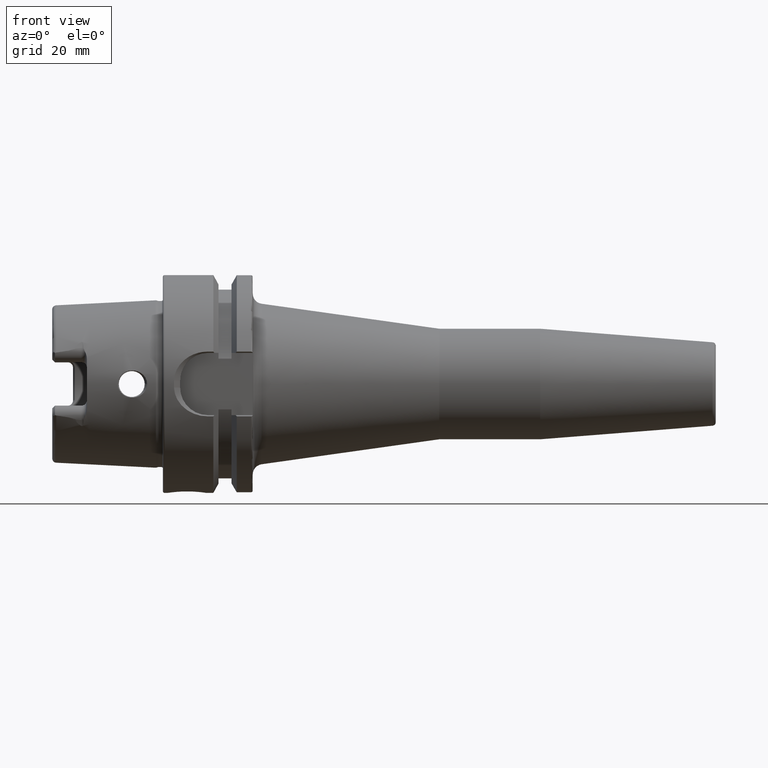
[diagram: clean part render]
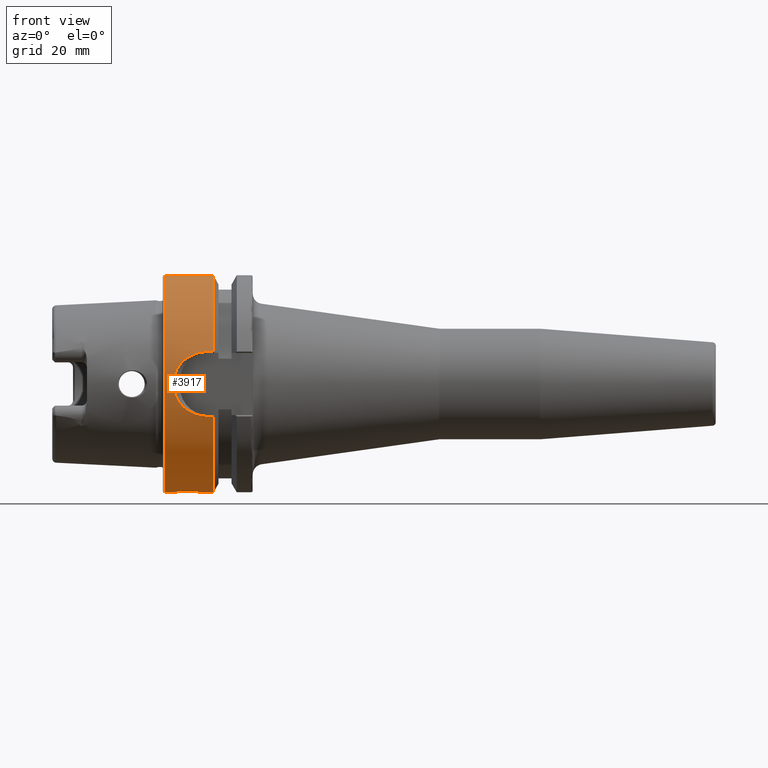
[diagram: same view with one face highlighted and labeled with its STEP entity id]
A machine part, front view. The second image highlights one B-rep face of the part: STEP entity #3917.
In plain terms, the highlighted cylindrical surface (partial cylindrical patch) has radius 31.5 mm, axis along (1, 0, 0).
Its self-contained STEP definition (entity closure, byte-faithful):
#742=CARTESIAN_POINT('',(5.E-1,0.E0,0.E0));
#743=DIRECTION('',(-1.E0,0.E0,0.E0));
#744=DIRECTION('',(0.E0,0.E0,-1.E0));
#745=AXIS2_PLACEMENT_3D('',#742,#743,#744);
#747=DIRECTION('',(-1.E0,-1.152697855394E-12,0.E0));
#748=VECTOR('',#747,1.412250090457E1);
#749=CARTESIAN_POINT('',(1.462250090457E1,0.E0,3.15E1));
#750=LINE('',#749,#748);
#751=CARTESIAN_POINT('',(1.462250090457E1,0.E0,0.E0));
#752=DIRECTION('',(1.E0,0.E0,0.E0));
#753=DIRECTION('',(0.E0,0.E0,1.E0));
#754=AXIS2_PLACEMENT_3D('',#751,#752,#753);
#756=DIRECTION('',(1.E0,0.E0,0.E0));
#757=VECTOR('',#756,1.622500904567E0);
#758=CARTESIAN_POINT('',(1.3E1,-3.007314630073E1,9.373146300730E0));
#759=LINE('',#758,#757);
#760=CARTESIAN_POINT('',(3.215877017138E0,-3.148412298286E1,1.E0));
#761=CARTESIAN_POINT('',(3.229667999164E0,-3.147033200084E1,1.434196974159E0));
#762=CARTESIAN_POINT('',(3.331305148110E0,-3.142562614716E1,2.280557906877E0));
#763=CARTESIAN_POINT('',(3.689639209254E0,-3.131261894329E1,3.497824814117E0));
#764=CARTESIAN_POINT('',(4.224387561762E0,-3.116591969202E1,4.617731549332E0));
#765=CARTESIAN_POINT('',(4.908842568303E0,-3.099748287679E1,5.632070943113E0));
#766=CARTESIAN_POINT('',(5.712482050064E0,-3.082045350516E1,6.526140660742E0));
#767=CARTESIAN_POINT('',(6.610248790574E0,-3.064607991101E1,7.296749719208E0));
#768=CARTESIAN_POINT('',(7.571522800308E0,-3.048524436851E1,7.938452155490E0));
#769=CARTESIAN_POINT('',(8.586678709411E0,-3.034375148093E1,8.460694722024E0));
#770=CARTESIAN_POINT('',(9.645764018389E0,-3.022707288446E1,8.866638984176E0));
#771=CARTESIAN_POINT('',(1.074128466146E1,-3.013966717822E1,9.158034230836E0));
#772=CARTESIAN_POINT('',(1.186302386205E1,-3.008546433696E1,9.333758812896E0));
#773=CARTESIAN_POINT('',(1.261911814478E1,-3.007314630073E1,9.373146300730E0));
#774=CARTESIAN_POINT('',(1.3E1,-3.007314630073E1,9.373146300730E0));
#776=CARTESIAN_POINT('',(3.215877017138E0,-3.148412298286E1,1.E0));
#777=CARTESIAN_POINT('',(3.194702323244E0,-3.150529767676E1,3.333333333333E-1));
#778=CARTESIAN_POINT('',(3.194702323244E0,-3.150529767676E1,
-3.333333333333E-1));
#779=CARTESIAN_POINT('',(3.215877017138E0,-3.148412298286E1,-1.E0));
#781=CARTESIAN_POINT('',(1.3E1,-3.007314630073E1,-9.373146300730E0));
#782=CARTESIAN_POINT('',(1.261853332120E1,-3.007314630073E1,-9.373146300730E0));
#783=CARTESIAN_POINT('',(1.186054965003E1,-3.008548964654E1,-9.333679878844E0));
#784=CARTESIAN_POINT('',(1.073214946153E1,-3.014018055062E1,-9.156365746563E0));
#785=CARTESIAN_POINT('',(9.631145388051E0,-3.022842683235E1,-8.862067281056E0));
#786=CARTESIAN_POINT('',(8.571278418516E0,-3.034570143073E1,-8.453719776647E0));
#787=CARTESIAN_POINT('',(7.561968874510E0,-3.048678333923E1,-7.932465852427E0));
#788=CARTESIAN_POINT('',(6.609353099417E0,-3.064632014939E1,-7.295523702098E0));
#789=CARTESIAN_POINT('',(5.719379577085E0,-3.081907849533E1,-6.532291860359E0));
#790=CARTESIAN_POINT('',(4.918592559215E0,-3.099521802093E1,-5.644324145033E0));
#791=CARTESIAN_POINT('',(4.231158808814E0,-3.116413549913E1,-4.629983120332E0));
#792=CARTESIAN_POINT('',(3.691949597490E0,-3.131190693228E1,-3.504990575318E0));
#793=CARTESIAN_POINT('',(3.331145804748E0,-3.142565099898E1,-2.281032014602E0));
#794=CARTESIAN_POINT('',(3.229661047521E0,-3.147033895248E1,-1.433978107804E0));
#795=CARTESIAN_POINT('',(3.215877017138E0,-3.148412298286E1,-1.E0));
#797=DIRECTION('',(1.E0,0.E0,0.E0));
#798=VECTOR('',#797,1.622500904567E0);
#799=CARTESIAN_POINT('',(1.3E1,-3.007314630073E1,-9.373146300730E0));
#800=LINE('',#799,#798);
#801=CARTESIAN_POINT('',(1.462250090457E1,0.E0,0.E0));
#802=DIRECTION('',(1.E0,0.E0,0.E0));
#803=DIRECTION('',(0.E0,-9.547030571660E-1,-2.975602000232E-1));
#804=AXIS2_PLACEMENT_3D('',#801,#802,#803);
#806=DIRECTION('',(-1.E0,0.E0,0.E0));
#807=VECTOR('',#806,2.122500904567E0);
#808=CARTESIAN_POINT('',(1.462250090457E1,0.E0,-3.15E1));
#809=LINE('',#808,#807);
#810=CARTESIAN_POINT('',(1.5E0,0.E0,-3.15E1));
#811=CARTESIAN_POINT('',(1.5E0,-3.588951255127E-1,-3.15E1));
#812=CARTESIAN_POINT('',(1.581138327990E0,-1.048548521747E0,-3.148782376809E1));
#813=CARTESIAN_POINT('',(1.910588073966E0,-2.006564336888E0,-3.144040908891E1));
#814=CARTESIAN_POINT('',(2.415944971875E0,-2.861556117510E0,-3.137324069068E1));
#815=CARTESIAN_POINT('',(3.093296979582E0,-3.621570072850E0,-3.129379480836E1));
#816=CARTESIAN_POINT('',(3.932860337858E0,-4.259632130927E0,-3.121237817627E1));
#817=CARTESIAN_POINT('',(4.908163968859E0,-4.738763837594E0,-3.114229734464E1));
#818=CARTESIAN_POINT('',(5.940629906439E0,-5.023428099724E0,-3.109702626598E1));
#819=CARTESIAN_POINT('',(7.003177692584E0,-5.118459986461E0,-3.108133735981E1));
#820=CARTESIAN_POINT('',(8.065102610065E0,-5.022310651440E0,-3.109720856453E1));
#821=CARTESIAN_POINT('',(9.095890701222E0,-4.737167472201E0,-3.114254165967E1));
#822=CARTESIAN_POINT('',(1.007119715688E1,-4.257247395534E0,-3.121271241342E1));
#823=CARTESIAN_POINT('',(1.091189752168E1,-3.616987749219E0,-3.129434443001E1));
#824=CARTESIAN_POINT('',(1.158923361556E1,-2.854578399489E0,-3.137389265772E1));
#825=CARTESIAN_POINT('',(1.209279314293E1,-1.998956427454E0,-3.144088492167E1));
#826=CARTESIAN_POINT('',(1.241973333056E1,-1.043420158419E0,-3.148795551285E1));
#827=CARTESIAN_POINT('',(1.25E1,-3.569041729368E-1,-3.15E1));
#828=CARTESIAN_POINT('',(1.25E1,0.E0,-3.15E1));
#830=DIRECTION('',(-1.E0,-3.500326402276E-12,0.E0));
#831=VECTOR('',#830,1.E0);
#832=CARTESIAN_POINT('',(1.5E0,0.E0,-3.15E1));
#833=LINE('',#832,#831);
#852=CARTESIAN_POINT('',(1.25E1,0.E0,-3.15E1));
#870=CARTESIAN_POINT('',(1.5E0,0.E0,-3.15E1));
#2699=CARTESIAN_POINT('',(1.462250090457E1,0.E0,3.15E1));
#2700=VERTEX_POINT('',#2699);
#2842=VERTEX_POINT('',#852);
#2843=VERTEX_POINT('',#870);
#2852=CARTESIAN_POINT('',(1.462250090457E1,0.E0,-3.15E1));
#2853=VERTEX_POINT('',#2852);
#2876=CARTESIAN_POINT('',(1.3E1,-3.007314630073E1,-9.373146300730E0));
#2877=CARTESIAN_POINT('',(1.462250090457E1,-3.007314630073E1,
-9.373146300730E0));
#2878=VERTEX_POINT('',#2876);
#2879=VERTEX_POINT('',#2877);
#2880=VERTEX_POINT('',#795);
#2881=VERTEX_POINT('',#776);
#2882=VERTEX_POINT('',#774);
#2883=CARTESIAN_POINT('',(1.462250090457E1,-3.007314630073E1,9.373146300730E0));
#2884=VERTEX_POINT('',#2883);
#2924=CARTESIAN_POINT('',(5.E-1,0.E0,3.15E1));
#2925=CARTESIAN_POINT('',(5.E-1,0.E0,-3.15E1));
#2926=VERTEX_POINT('',#2924);
#2927=VERTEX_POINT('',#2925);
#3886=CARTESIAN_POINT('',(0.E0,0.E0,0.E0));
#3887=DIRECTION('',(1.E0,0.E0,0.E0));
#3888=DIRECTION('',(0.E0,0.E0,1.E0));
#3889=AXIS2_PLACEMENT_3D('',#3886,#3887,#3888);
#3890=CYLINDRICAL_SURFACE('',#3889,3.15E1);
#3892=ORIENTED_EDGE('',*,*,#3891,.T.);
#3894=ORIENTED_EDGE('',*,*,#3893,.F.);
#3896=ORIENTED_EDGE('',*,*,#3895,.T.);
#3898=ORIENTED_EDGE('',*,*,#3897,.F.);
#3900=ORIENTED_EDGE('',*,*,#3899,.F.);
#3902=ORIENTED_EDGE('',*,*,#3901,.T.);
#3904=ORIENTED_EDGE('',*,*,#3903,.F.);
#3906=ORIENTED_EDGE('',*,*,#3905,.T.);
#3908=ORIENTED_EDGE('',*,*,#3907,.T.);
#3910=ORIENTED_EDGE('',*,*,#3909,.T.);
#3912=ORIENTED_EDGE('',*,*,#3911,.F.);
#3914=ORIENTED_EDGE('',*,*,#3913,.T.);
#3915=EDGE_LOOP('',(#3892,#3894,#3896,#3898,#3900,#3902,#3904,#3906,#3908,#3910,
#3912,#3914));
#3916=FACE_OUTER_BOUND('',#3915,.F.);
#3917=ADVANCED_FACE('',(#3916),#3890,.T.);
#746=CIRCLE('',#745,3.15E1);
#755=CIRCLE('',#754,3.15E1);
#775=B_SPLINE_CURVE_WITH_KNOTS('',3,(#760,#761,#762,#763,#764,#765,#766,#767,
#768,#769,#770,#771,#772,#773,#774),.UNSPECIFIED.,.F.,.F.,(4,1,1,1,1,1,1,1,1,1,
1,1,4),(0.E0,8.333333333333E-2,1.666666666667E-1,2.5E-1,3.333333333333E-1,
4.166666666667E-1,5.E-1,5.833333333333E-1,6.666666666667E-1,7.5E-1,
8.333333333333E-1,9.166666666667E-1,1.E0),.UNSPECIFIED.);
#780=B_SPLINE_CURVE_WITH_KNOTS('',3,(#776,#777,#778,#779),.UNSPECIFIED.,.F.,.F.,
(4,4),(0.E0,1.E0),.UNSPECIFIED.);
#796=B_SPLINE_CURVE_WITH_KNOTS('',3,(#781,#782,#783,#784,#785,#786,#787,#788,
#789,#790,#791,#792,#793,#794,#795),.UNSPECIFIED.,.F.,.F.,(4,1,1,1,1,1,1,1,1,1,
1,1,4),(0.E0,8.333333333333E-2,1.666666666667E-1,2.5E-1,3.333333333333E-1,
4.166666666667E-1,5.E-1,5.833333333333E-1,6.666666666667E-1,7.5E-1,
8.333333333333E-1,9.166666666667E-1,1.E0),.UNSPECIFIED.);
#805=CIRCLE('',#804,3.15E1);
#829=B_SPLINE_CURVE_WITH_KNOTS('',3,(#810,#811,#812,#813,#814,#815,#816,#817,
#818,#819,#820,#821,#822,#823,#824,#825,#826,#827,#828),.UNSPECIFIED.,.F.,.F.,
(4,1,1,1,1,1,1,1,1,1,1,1,1,1,1,1,4),(0.E0,6.25E-2,1.25E-1,1.875E-1,2.5E-1,
3.125E-1,3.75E-1,4.375E-1,5.E-1,5.625E-1,6.25E-1,6.875E-1,7.5E-1,8.125E-1,
8.75E-1,9.375E-1,1.E0),.UNSPECIFIED.);
#3891=EDGE_CURVE('',#2927,#2926,#746,.T.);
#3893=EDGE_CURVE('',#2700,#2926,#750,.T.);
#3895=EDGE_CURVE('',#2700,#2884,#755,.T.);
#3897=EDGE_CURVE('',#2882,#2884,#759,.T.);
#3899=EDGE_CURVE('',#2881,#2882,#775,.T.);
#3901=EDGE_CURVE('',#2881,#2880,#780,.T.);
#3903=EDGE_CURVE('',#2878,#2880,#796,.T.);
#3905=EDGE_CURVE('',#2878,#2879,#800,.T.);
#3907=EDGE_CURVE('',#2879,#2853,#805,.T.);
#3909=EDGE_CURVE('',#2853,#2842,#809,.T.);
#3911=EDGE_CURVE('',#2843,#2842,#829,.T.);
#3913=EDGE_CURVE('',#2843,#2927,#833,.T.);